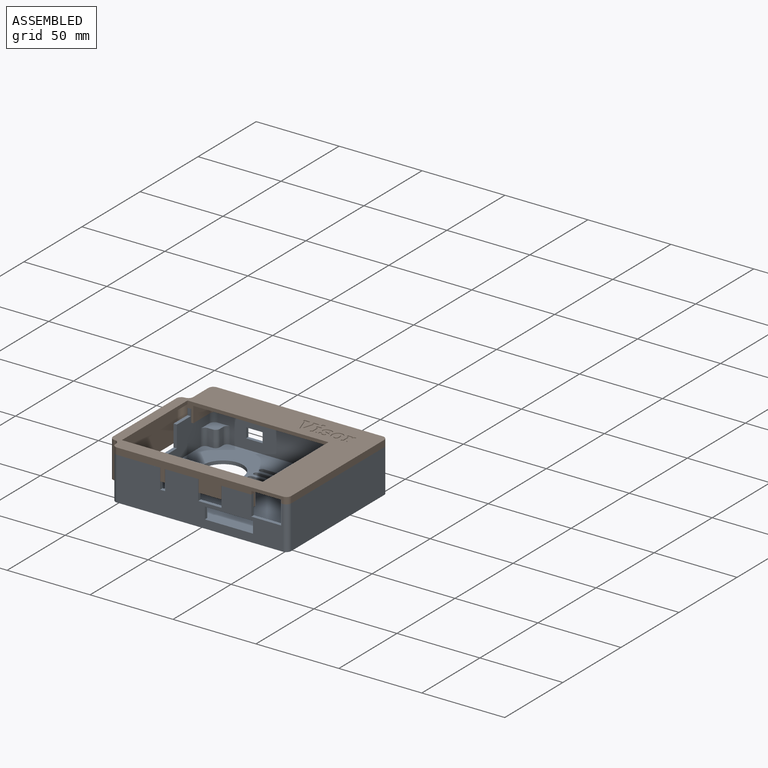
[diagram: assembled view]
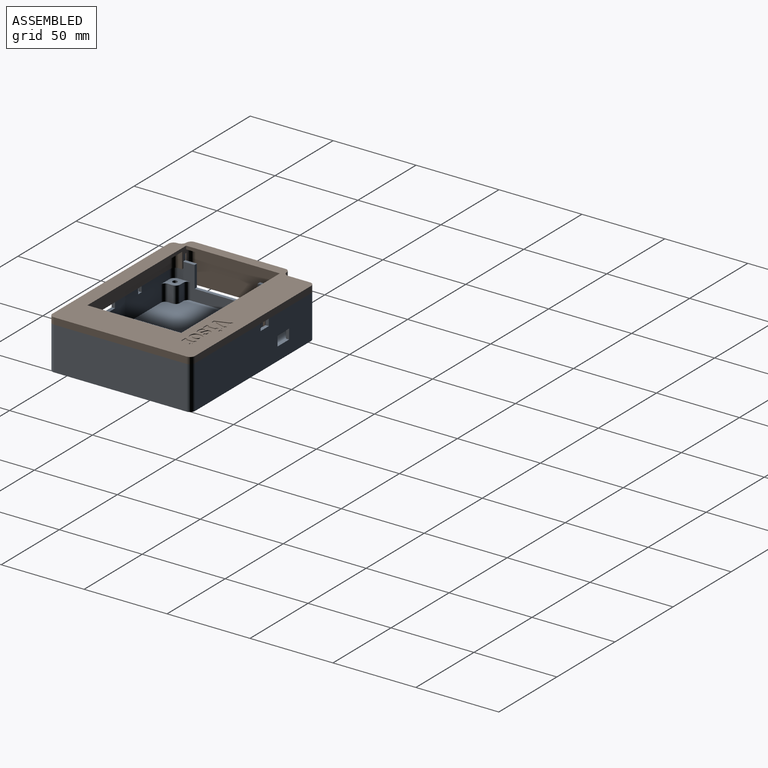
[diagram: assembled view, second angle]
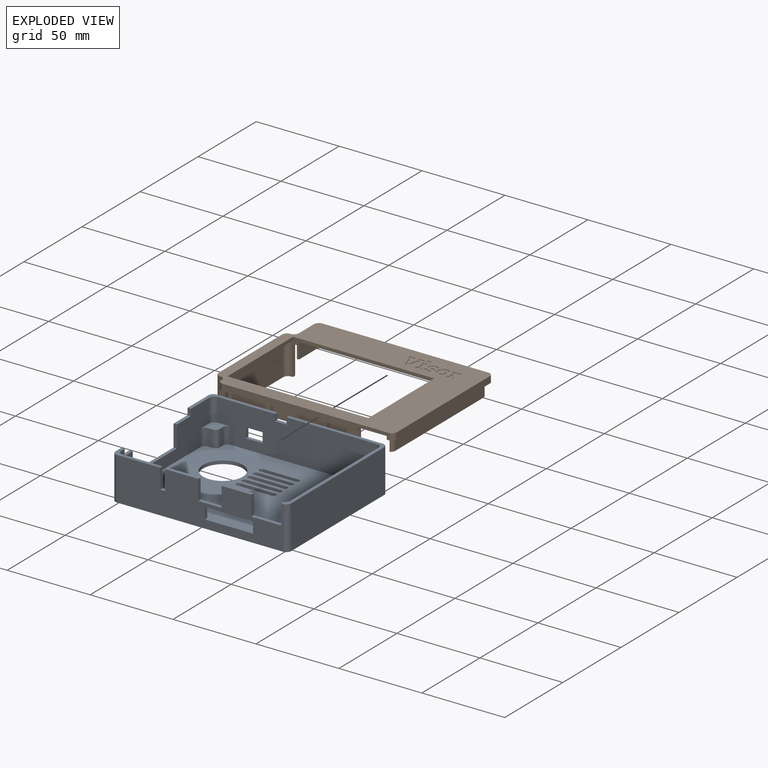
[diagram: exploded view]
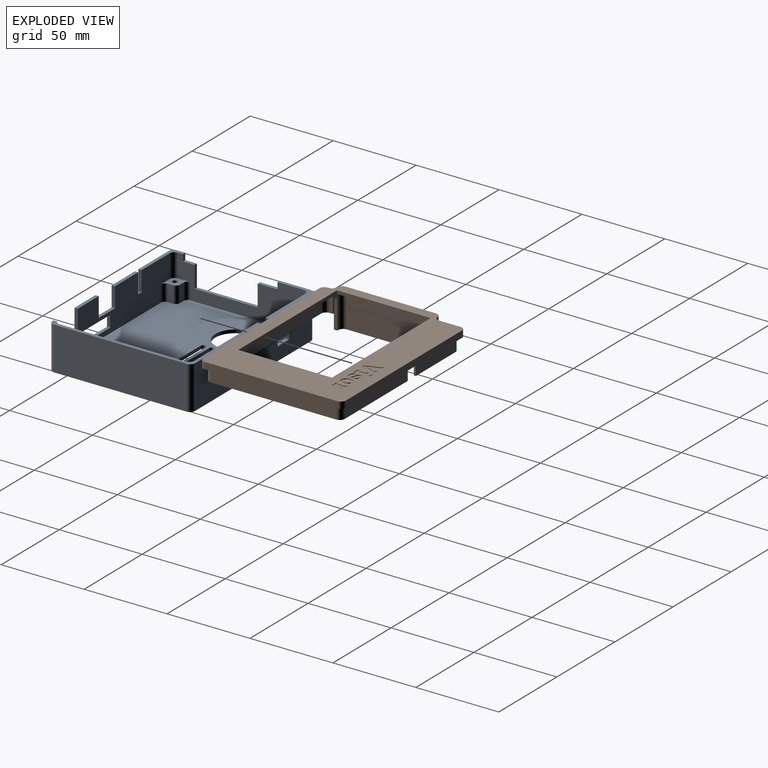
[diagram: exploded view, second angle]
ASSEMBLY  parts=2 mates=3
PART A: 98 faces, bbox 106x86x26 mm
  f0: plane 96x24mm, normal (0,-1,0), area 2066mm2, adj f3,f4,f12,f21,f24,f43,f44,f45
  f1: plane 100x26mm, normal (0,1,0), area 2512mm2, adj f3,f4,f14,f43,f44,f45,f49,f50
  f2: plane 12x2mm, normal (0,0,1), area 24mm2, adj f5,f6,f40,f47
  f3: plane 39.5x21mm, normal (0,0,1), area 117mm2, adj f0,f1,f5,f6,f40,f43,f90,f94
  f4: plane 86x59.5mm, normal (0,0,1), area 290.9mm2, adj f0,f1,f9,f13,f15,f33,f44,f92
  f5: plane 76x24mm, normal (1,0,0), area 952mm2, adj f2,f3,f7,f12,f18,f24,f40,f41
  f6: plane 80x26mm, normal (-1,0,0), area 1358mm2, adj f2,f3,f7,f14,f40,f41,f42,f46
  f7: plane 29x8mm, normal (0,0,1), area 70mm2, adj f5,f6,f8,f9,f39,f41,f91,f97
  f8: plane 96x24mm, normal (0,1,0), area 1573mm2, adj f7,f10,f11,f12,f18,f26,f27,f28
  f9: plane 100x26mm, normal (0,-1,0), area 1977mm2, adj f4,f7,f10,f11,f14,f27,f28,f29
  f10: plane 20x2mm, normal (0,0,1), area 40mm2, adj f8,f9,f35,f38
  f11: plane 18x2mm, normal (0,0,1), area 36mm2, adj f8,f9,f32,f36
  f12: plane 102x82mm, normal (0,0,1), area 7333.9mm2, adj f0,f5,f8,f13,f16,f17,f19,f20
  f13: plane 76x24mm, normal (-1,0,0), area 1694mm2, adj f4,f12,f21,f26,f79,f85,f95,f96
  f14: plane 106x86mm, normal (0,0,-1), area 8305.5mm2, adj f1,f6,f9,f15,f53,f54,f55,f56
  f15: plane 80x26mm, normal (1,0,0), area 2080mm2, adj f4,f14,f92,f93
  f16: plane 10x3mm, normal (0,1,0), area 30mm2, adj f12,f18,f88,f89
  f17: plane 10x3mm, normal (1,0,0), area 30mm2, adj f12,f18,f87,f89
  f18: plane 10.5x10.5mm, normal (0,0,1), area 56.3mm2, adj f5,f8,f16,f17,f77,f87,f88,f89
  f19: plane 10x3mm, normal (0,-1,0), area 30mm2, adj f12,f21,f85,f86
  f20: plane 10x3mm, normal (-1,0,0), area 30mm2, adj f12,f21,f84,f86
  f21: plane 10.5x10.5mm, normal (0,0,1), area 56.3mm2, adj f0,f13,f19,f20,f75,f84,f85,f86
  f22: plane 10x3mm, normal (1,0,0), area 30mm2, adj f12,f24,f82,f83
  f23: plane 10x3mm, normal (0,-1,0), area 30mm2, adj f12,f24,f81,f83
  f24: plane 10.5x10.5mm, normal (0,0,1), area 63.4mm2, adj f0,f5,f22,f23,f81,f82,f83,f94
  f25: plane 10x1mm, normal (-1,0,0), area 10mm2, adj f12,f26,f78,f80
  f26: plane 8.5x7.5mm, normal (0,0,1), area 29.4mm2, adj f8,f13,f25,f78,f79,f80,f96
  f27: plane 7x2mm, normal (-1,0,0), area 14mm2, adj f8,f9,f29,f30
  f28: plane 7x2mm, normal (1,0,0), area 14mm2, adj f8,f9,f29,f30
  f29: plane 29x2mm, normal (0,0,1), area 58mm2, adj f8,f9,f27,f28
  f30: plane 29x2mm, normal (0,0,-1), area 58mm2, adj f8,f9,f27,f28
  f31: plane 18x2.17mm, normal (0,0,1), area 36.1mm2, adj f8,f9,f32,f33,f96
  f32: plane 12x2mm, normal (1,0,0), area 24mm2, adj f8,f9,f11,f31
  f33: plane 12x2.17mm, normal (-1,0,0), area 26.1mm2, adj f4,f9,f31,f96
  f34: plane 14x2mm, normal (0,0,1), area 28mm2, adj f8,f9,f35,f36
  f35: plane 12x2mm, normal (1,0,0), area 24mm2, adj f8,f9,f10,f34
  f36: plane 12x2mm, normal (-1,0,0), area 24mm2, adj f8,f9,f11,f34
  f37: plane 3x2mm, normal (0,0,1), area 6mm2, adj f8,f9,f38,f39
  f38: plane 12x2mm, normal (-1,0,0), area 24mm2, adj f8,f9,f10,f37
  f39: plane 12x2mm, normal (1,0,0), area 24mm2, adj f7,f8,f9,f37
  f40: plane 4x2mm, normal (0,-1,0), area 8mm2, adj f2,f3,f5,f6
  f41: plane 4x2mm, normal (0,1,0), area 8mm2, adj f5,f6,f7,f42
  f42: plane 7x2mm, normal (0,0,1), area 14mm2, adj f5,f6,f41,f46
  f43: plane 4x2mm, normal (1,0,0), area 8mm2, adj f0,f1,f3,f45
  f44: plane 4x2mm, normal (-1,0,0), area 8mm2, adj f0,f1,f4,f45
  f45: plane 7x2mm, normal (0,0,1), area 14mm2, adj f0,f1,f43,f44
  f46: plane 13x2mm, normal (0,1,0), area 26mm2, adj f5,f6,f42,f48
  f47: plane 13x2mm, normal (0,-1,0), area 26mm2, adj f2,f5,f6,f48
  f48: plane 38x2mm, normal (0,0,1), area 76mm2, adj f5,f6,f46,f47
  f49: plane 6x2mm, normal (1,0,0), area 12mm2, adj f0,f1,f51,f52
  f50: plane 6x2mm, normal (-1,0,0), area 12mm2, adj f0,f1,f51,f52
  f51: plane 10x2mm, normal (0,0,1), area 20mm2, adj f0,f1,f49,f50
  f52: plane 10x2mm, normal (0,0,-1), area 20mm2, adj f0,f1,f49,f50
  f53: cylinder r=12mm len=24mm, axis (0,0,1), area 150.8mm2, adj f12,f14
  f54: plane 21x2mm, normal (0,-1,0), area 42mm2, adj f12,f14,f64,f65
  f55: plane 21x2mm, normal (0,1,0), area 42mm2, adj f12,f14,f64,f65
  f56: plane 21x2mm, normal (0,-1,0), area 42mm2, adj f12,f14,f66,f67
  f57: plane 21x2mm, normal (0,1,0), area 42mm2, adj f12,f14,f66,f67
  f58: plane 21x2mm, normal (0,-1,0), area 42mm2, adj f12,f14,f68,f69
  f59: plane 21x2mm, normal (0,1,0), area 42mm2, adj f12,f14,f68,f69
  f60: plane 21x2mm, normal (0,-1,0), area 42mm2, adj f12,f14,f70,f71
  f61: plane 21x2mm, normal (0,1,0), area 42mm2, adj f12,f14,f70,f71
  f62: plane 21x2mm, normal (0,-1,0), area 42mm2, adj f12,f14,f72,f73
  f63: plane 21x2mm, normal (0,1,0), area 42mm2, adj f12,f14,f72,f73
  f64: cylinder r=1.5mm len=3mm, axis (0,0,-1), area 9.4mm2, adj f12,f14,f54,f55
  f65: cylinder r=1.5mm len=3mm, axis (0,0,1), area 9.4mm2, adj f12,f14,f54,f55
  f66: cylinder r=1.5mm len=3mm, axis (0,0,-1), area 9.4mm2, adj f12,f14,f56,f57
  f67: cylinder r=1.5mm len=3mm, axis (0,0,1), area 9.4mm2, adj f12,f14,f56,f57
  f68: cylinder r=1.5mm len=3mm, axis (0,0,-1), area 9.4mm2, adj f12,f14,f58,f59
  f69: cylinder r=1.5mm len=3mm, axis (0,0,1), area 9.4mm2, adj f12,f14,f58,f59
  f70: cylinder r=1.5mm len=3mm, axis (0,0,-1), area 9.4mm2, adj f12,f14,f60,f61
  f71: cylinder r=1.5mm len=3mm, axis (0,0,1), area 9.4mm2, adj f12,f14,f60,f61
  f72: cylinder r=1.5mm len=3mm, axis (0,0,-1), area 9.4mm2, adj f12,f14,f62,f63
  f73: cylinder r=1.5mm len=3mm, axis (0,0,1), area 9.4mm2, adj f12,f14,f62,f63
  f74: plane 3x3mm, normal (0,0,1), area 7.1mm2, adj f75
  f75: cylinder r=1.5mm len=10mm, axis (0,0,1), area 94.2mm2, adj f21,f74
  f76: plane 3x3mm, normal (0,0,1), area 7.1mm2, adj f77
  f77: cylinder r=1.5mm len=10mm, axis (0,0,1), area 94.2mm2, adj f18,f76
  f78: cylinder r=2.5mm len=10mm, axis (0,0,-1), area 39.3mm2, adj f12,f25,f26,f79
  f79: cylinder r=2.5mm len=10mm, axis (0,0,1), area 39.3mm2, adj f12,f13,f26,f78
  f80: cylinder r=2.5mm len=10mm, axis (0,0,1), area 39.3mm2, adj f8,f12,f25,f26
  f81: cylinder r=2.5mm len=10mm, axis (0,0,-1), area 39.3mm2, adj f5,f12,f23,f24
  f82: cylinder r=2.5mm len=10mm, axis (0,0,-1), area 39.3mm2, adj f0,f12,f22,f24
  f83: cylinder r=2.5mm len=10mm, axis (0,0,-1), area 39.3mm2, adj f12,f22,f23,f24
  f84: cylinder r=2.5mm len=10mm, axis (0,0,1), area 39.3mm2, adj f0,f12,f20,f21
  f85: cylinder r=2.5mm len=10mm, axis (0,0,-1), area 39.3mm2, adj f12,f13,f19,f21
  f86: cylinder r=2.5mm len=10mm, axis (0,0,-1), area 39.3mm2, adj f12,f19,f20,f21
  f87: cylinder r=2.5mm len=10mm, axis (0,0,-1), area 39.3mm2, adj f8,f12,f17,f18
  f88: cylinder r=2.5mm len=10mm, axis (0,0,1), area 39.3mm2, adj f5,f12,f16,f18
  f89: cylinder r=2.5mm len=10mm, axis (0,0,-1), area 39.3mm2, adj f12,f16,f17,f18
  f90: cylinder r=3mm len=26mm, axis (0,0,1), area 122.5mm2, adj f1,f3,f6,f14
  f91: cylinder r=3mm len=26mm, axis (0,0,-1), area 122.5mm2, adj f6,f7,f9,f14
  f92: cylinder r=3mm len=26mm, axis (0,0,1), area 122.5mm2, adj f4,f9,f14,f15
  f93: cylinder r=3mm len=26mm, axis (0,0,-1), area 122.5mm2, adj f1,f4,f14,f15
  f94: cylinder r=3mm len=14mm, axis (0,0,-1), area 66mm2, adj f0,f3,f5,f24
  f95: cylinder r=3mm len=14mm, axis (0,0,1), area 66mm2, adj f0,f4,f13,f21
  f96: cylinder r=3mm len=14mm, axis (0,0,-1), area 53.7mm2, adj f4,f8,f13,f26,f31,f33
  f97: cylinder r=3mm len=14mm, axis (0,0,1), area 66mm2, adj f5,f7,f8,f18
PART B: 175 faces, bbox 112x86x22 mm
  f0: plane 86x22mm, normal (0,-1,0), area 202.4mm2, adj f3,f13,f15,f22,f23,f26,f31,f147
  f1: plane 86x22mm, normal (0,1,0), area 202.4mm2, adj f11,f12,f22,f26,f27,f31,f142,f147
  f2: plane 100x11.5mm, normal (0,1,0), area 485.5mm2, adj f3,f20,f21,f22,f23,f24,f25,f26
  f3: plane 81.7x8.5mm, normal (0,0,1), area 141.4mm2, adj f0,f2,f5,f6,f7,f8,f13,f15
  f4: plane 4x0.5mm, normal (-1,0,0), area 2mm2, adj f22,f23,f166,f168
  f5: plane 23.9x7.5mm, normal (0,1,0), area 179.2mm2, adj f3,f23,f150,f158
  f6: plane 20.4x7.5mm, normal (0,1,0), area 153mm2, adj f3,f24,f151,f152
  f7: plane 18x7.5mm, normal (0,1,0), area 135mm2, adj f3,f21,f25,f32
  f8: plane 77.5x9.5mm, normal (0,-1,0), area 736.2mm2, adj f3,f21,f26,f155
  f9: plane 7.5x1.2mm, normal (1,0,0), area 9mm2, adj f14,f17,f27,f142
  f10: plane 54.2x7.5mm, normal (0,-1,0), area 406.5mm2, adj f19,f27,f141,f160
  f11: plane 15.7x7.5mm, normal (-1,0,0), area 117.7mm2, adj f1,f27,f142,f159
  f12: plane 14.5x9.5mm, normal (1,0,0), area 137.7mm2, adj f1,f26,f142,f157
  f13: plane 7.5x3.2mm, normal (-1,0,0), area 24mm2, adj f0,f3,f23,f158
  f14: plane 34.2x7.5mm, normal (0,-1,0), area 256.5mm2, adj f9,f27,f142,f159
  f15: plane 9.5x2mm, normal (1,0,0), area 19mm2, adj f0,f3,f26,f155
  f16: plane 74.34x9.5mm, normal (-1,0,0), area 706.2mm2, adj f26,f141,f156,f174
  f17: plane 93x9.5mm, normal (0,1,0), area 831mm2, adj f9,f19,f26,f27,f141,f142,f156,f157
  f18: plane 75.7x7.5mm, normal (1,0,0), area 567.7mm2, adj f27,f141,f160,f173
  f19: plane 7.5x1.2mm, normal (-1,0,0), area 9mm2, adj f10,f17,f27,f141
  f20: plane 9.5x3.5mm, normal (-1,0,0), area 16mm2, adj f2,f26,f27,f141,f173,f174
  f21: plane 9.5x3.5mm, normal (1,0,0), area 16mm2, adj f2,f3,f7,f8,f25,f26
  f22: plane 112x86mm, normal (0,0,-1), area 4530.6mm2, adj f0,f1,f2,f4,f28,f29,f30,f31
  f23: plane 32.2x8.5mm, normal (0,0,1), area 83.8mm2, adj f0,f2,f4,f5,f13,f144,f150,f158
  f24: plane 20.4x2.3mm, normal (0,0,1), area 46.9mm2, adj f2,f6,f151,f152
  f25: plane 18.2x2.3mm, normal (0,0,1), area 41.8mm2, adj f2,f7,f21,f32,f148,f149
  f26: plane 99x82.5mm, normal (0,0,1), area 3273.2mm2, adj f0,f1,f2,f8,f12,f15,f16,f17
  f27: plane 109x86mm, normal (0,0,1), area 493.3mm2, adj f1,f2,f9,f10,f11,f14,f17,f18
  f28: plane 80x4mm, normal (1,0,0), area 320mm2, adj f22,f27,f162,f163
  f29: plane 100x4mm, normal (0,-1,0), area 400mm2, adj f22,f27,f161,f162
  f30: plane 13x4mm, normal (-1,0,0), area 52mm2, adj f22,f27,f161,f167
  f31: plane 56.5x2mm, normal (-1,0,0), area 113mm2, adj f0,f1,f22,f26
  f32: plane 7.5x0.3mm, normal (1,0,0), area 2.3mm2, adj f3,f7,f25,f148
  f33: plane 0.9x0.4mm, normal (0.21,0.98,0), area 0.4mm2, adj f22,f34,f42,f43
  f34: plane 1.12x0.4mm, normal (1,0,0), area 0.4mm2, adj f22,f33,f35,f43
  f35: plane 3.68x0.4mm, normal (0,-1,0), area 1.5mm2, adj f22,f34,f36,f43
  f36: plane 1.12x0.4mm, normal (-1,0,0), area 0.4mm2, adj f22,f35,f37,f43
  f37: plane 0.9x0.4mm, normal (-0.21,0.98,0), area 0.4mm2, adj f22,f36,f38,f43
  f38: plane 5.63x0.4mm, normal (-1,0,0), area 2.3mm2, adj f22,f37,f39,f43
  f39: plane 2.88x0.4mm, normal (0,1,0), area 1.2mm2, adj f22,f38,f40,f43
  f40: plane 1.13x0.4mm, normal (1,0,0), area 0.5mm2, adj f22,f39,f41,f43
  f41: plane 1x0.4mm, normal (0.19,-0.98,0), area 0.4mm2, adj f22,f40,f42,f43
  f42: plane 4.31x0.4mm, normal (1,0,0), area 1.7mm2, adj f22,f33,f41,f43
  f43: plane 6.94x3.77mm, normal (0,0,-1), area 16.4mm2, adj f33,f34,f35,f36,f37,f38,f39,f40
  f44: plane 1.88x0.4mm, normal (0,-1,0), area 0.7mm2, adj f22,f45,f47,f48
  f45: plane 1.4x0.4mm, normal (-1,0,0), area 0.6mm2, adj f22,f44,f46,f48
  f46: plane 1.88x0.4mm, normal (0,1,0), area 0.7mm2, adj f22,f45,f47,f48
  f47: plane 1.4x0.4mm, normal (1,0,0), area 0.6mm2, adj f22,f44,f46,f48
  f48: plane 1.88x1.4mm, normal (0,0,-1), area 2.6mm2, adj f44,f45,f46,f47
  f49: plane 1.26x0.4mm, normal (0,-1,0), area 0.5mm2, adj f22,f50,f78,f79
  f50: plane 1.73x0.4mm, normal (-1,0.01,0), area 0.7mm2, adj f22,f49,f51,f79
  f51: extruded ~1.13x0.56mm, area 0.5mm2, adj f22,f50,f52,f79
  f52: extruded ~1.53x0.4mm, area 0.6mm2, adj f22,f51,f53,f79
  f53: extruded ~2.05x0.63mm, area 0.9mm2, adj f22,f52,f54,f79
  f54: extruded ~1.51x0.72mm, area 0.7mm2, adj f22,f53,f55,f79
  f55: extruded ~1.34x0.63mm, area 0.6mm2, adj f22,f54,f56,f79
  f56: extruded ~1.85x0.74mm, area 0.8mm2, adj f22,f55,f57,f79
  f57: extruded ~1.11x0.4mm, area 0.5mm2, adj f22,f56,f58,f79
  f58: extruded ~0.53x0.4mm, area 0.3mm2, adj f22,f57,f59,f79
  f59: extruded ~0.56x0.4mm, area 0.3mm2, adj f22,f58,f60,f79
  f60: extruded ~0.87x0.4mm, area 0.4mm2, adj f22,f59,f61,f79
  f61: extruded ~0.6x0.4mm, area 0.2mm2, adj f22,f60,f62,f79
  f62: extruded ~0.46x0.4mm, area 0.2mm2, adj f22,f61,f63,f79
  f63: plane 0.9x0.4mm, normal (-0.96,0.27,0), area 0.4mm2, adj f22,f62,f64,f79
  f64: plane 1.31x0.4mm, normal (0,1,0), area 0.5mm2, adj f22,f63,f65,f79
  f65: plane 1.56x0.4mm, normal (1,-0.01,0), area 0.6mm2, adj f22,f64,f66,f79
  f66: extruded ~1.19x0.67mm, area 0.6mm2, adj f22,f65,f67,f79
  f67: extruded ~1.47x0.4mm, area 0.6mm2, adj f22,f66,f68,f79
  f68: extruded ~2.12x0.59mm, area 0.9mm2, adj f22,f67,f69,f79
  f69: extruded ~1.53x0.81mm, area 0.7mm2, adj f22,f68,f70,f79
  f70: extruded ~1.37x0.62mm, area 0.6mm2, adj f22,f69,f71,f79
  f71: extruded ~1.91x0.75mm, area 0.8mm2, adj f22,f70,f72,f79
  f72: extruded ~1.1x0.4mm, area 0.5mm2, adj f22,f71,f73,f79
  f73: extruded ~0.52x0.4mm, area 0.2mm2, adj f22,f72,f74,f79
  f74: extruded ~0.55x0.4mm, area 0.3mm2, adj f22,f73,f75,f79
  f75: extruded ~0.78x0.4mm, area 0.3mm2, adj f22,f74,f76,f79
  f76: extruded ~0.65x0.4mm, area 0.3mm2, adj f22,f75,f77,f79
  f77: extruded ~0.48x0.4mm, area 0.2mm2, adj f22,f76,f78,f79
  f78: plane 0.87x0.4mm, normal (0.97,-0.22,0), area 0.4mm2, adj f22,f49,f77,f79
  f79: plane 7.2x5.71mm, normal (0,0,-1), area 25.8mm2, adj f49,f50,f51,f52,f53,f54,f55,f56
  f80: plane 0.9x0.4mm, normal (0.21,0.98,0), area 0.4mm2, adj f22,f81,f98,f99
  f81: plane 1.12x0.4mm, normal (1,0,0), area 0.4mm2, adj f22,f80,f82,f99
  f82: plane 3.67x0.4mm, normal (0,-1,0), area 1.5mm2, adj f22,f81,f83,f99
  f83: plane 1.12x0.4mm, normal (-1,0,0), area 0.4mm2, adj f22,f82,f84,f99
  f84: plane 0.9x0.4mm, normal (-0.21,0.98,0), area 0.4mm2, adj f22,f83,f85,f99
  f85: plane 3.37x0.4mm, normal (-1,0,0), area 1.3mm2, adj f22,f84,f86,f99
  f86: extruded ~0.46x0.41mm, area 0.2mm2, adj f22,f85,f87,f99
  f87: extruded ~0.68x0.4mm, area 0.3mm2, adj f22,f86,f88,f99
  f88: plane 0.77x0.4mm, normal (0.02,-1,0), area 0.3mm2, adj f22,f87,f89,f99
  f89: plane 1.71x0.4mm, normal (-0.99,-0.12,0), area 0.7mm2, adj f22,f88,f90,f99
  f90: extruded ~0.4x0.27mm, area 0.1mm2, adj f22,f89,f91,f99
  f91: extruded ~0.4x0.31mm, area 0.1mm2, adj f22,f90,f92,f99
  f92: extruded ~0.89x0.4mm, area 0.4mm2, adj f22,f91,f93,f99
  f93: extruded ~0.84x0.63mm, area 0.4mm2, adj f22,f92,f94,f99
  f94: plane 1.01x0.4mm, normal (-1,0.08,0), area 0.4mm2, adj f22,f93,f95,f99
  f95: plane 2.74x0.4mm, normal (0,1,0), area 1.1mm2, adj f22,f94,f96,f99
  f96: plane 1.13x0.4mm, normal (1,0,0), area 0.5mm2, adj f22,f95,f97,f99
  f97: plane 0.99x0.4mm, normal (0.19,-0.98,0), area 0.4mm2, adj f22,f96,f98,f99
  f98: plane 4.31x0.4mm, normal (1,0,0), area 1.7mm2, adj f22,f80,f97,f99
  f99: plane 7.07x4.93mm, normal (0,0,-1), area 19.5mm2, adj f80,f81,f82,f83,f84,f85,f86,f87
  f100: extruded ~1.52x0.4mm, area 0.6mm2, adj f101,f119,f120,f140
  f101: plane 0.4x0.14mm, normal (-1,0,0), area 0.1mm2, adj f100,f102,f120,f140
  f102: extruded ~1.51x0.4mm, area 0.6mm2, adj f101,f103,f120,f140
  f103: extruded ~1.07x0.58mm, area 0.5mm2, adj f102,f104,f120,f140
  f104: extruded ~1.07x0.58mm, area 0.5mm2, adj f103,f105,f120,f140
  f105: extruded ~1.51x0.4mm, area 0.6mm2, adj f104,f106,f120,f140
  f106: plane 0.4x0.14mm, normal (1,0,0), area 0.1mm2, adj f105,f107,f120,f140
  f107: extruded ~1.52x0.4mm, area 0.6mm2, adj f106,f108,f120,f140
  f108: extruded ~1.06x0.58mm, area 0.5mm2, adj f107,f119,f120,f140
  f109: extruded ~2.54x0.87mm, area 1.1mm2, adj f22,f110,f118,f120
  f110: plane 0.4x0.14mm, normal (1,0,0), area 0.1mm2, adj f22,f109,f111,f120
  f111: extruded ~2.55x0.87mm, area 1.1mm2, adj f22,f110,f112,f120
  f112: extruded ~2.42x0.99mm, area 1.1mm2, adj f22,f111,f113,f120
  f113: extruded ~2.4x0.99mm, area 1.1mm2, adj f22,f112,f114,f120
  f114: extruded ~2.55x0.87mm, area 1.1mm2, adj f22,f113,f115,f120
  f115: plane 0.4x0.14mm, normal (-1,0,0), area 0.1mm2, adj f22,f114,f116,f120
  f116: extruded ~2.55x0.87mm, area 1.1mm2, adj f22,f115,f117,f120
  f117: extruded ~2.41x0.99mm, area 1.1mm2, adj f22,f116,f118,f120
  f118: extruded ~2.4x0.99mm, area 1.1mm2, adj f22,f109,f117,f120
  f119: extruded ~1.08x0.58mm, area 0.5mm2, adj f100,f108,f120,f140
  f120: plane 7.21x6.55mm, normal (0,0,-1), area 28.3mm2, adj f100,f101,f102,f103,f104,f105,f106,f107
  f121: plane 0.71x0.4mm, normal (-0.18,-0.98,0), area 0.3mm2, adj f22,f122,f138,f139
  f122: plane 1.13x0.4mm, normal (-1,0,0), area 0.5mm2, adj f22,f121,f123,f139
  f123: plane 3.42x0.4mm, normal (0,1,0), area 1.4mm2, adj f22,f122,f124,f139
  f124: plane 1.13x0.4mm, normal (1,0,0), area 0.5mm2, adj f22,f123,f125,f139
  f125: plane 0.77x0.4mm, normal (0.13,-0.99,0), area 0.3mm2, adj f22,f124,f126,f139
  f126: plane 8.11x2.76mm, normal (0.95,-0.32,0), area 3.4mm2, adj f22,f125,f127,f139
  f127: plane 1.93x0.4mm, normal (0,-1,0), area 0.8mm2, adj f22,f126,f128,f139
  f128: plane 8.11x2.75mm, normal (-0.95,-0.32,0), area 3.4mm2, adj f22,f127,f129,f139
  f129: plane 0.78x0.4mm, normal (-0.13,-0.99,0), area 0.3mm2, adj f22,f128,f130,f139
  f130: plane 1.13x0.4mm, normal (-1,0,0), area 0.5mm2, adj f22,f129,f131,f139
  f131: plane 3.41x0.4mm, normal (0,1,0), area 1.4mm2, adj f22,f130,f132,f139
  f132: plane 1.13x0.4mm, normal (1,0,0), area 0.5mm2, adj f22,f131,f133,f139
  f133: plane 0.71x0.4mm, normal (0.18,-0.98,0), area 0.3mm2, adj f22,f132,f134,f139
  f134: plane 5.62x1.66mm, normal (0.96,0.28,0), area 2.3mm2, adj f22,f133,f135,f139
  f135: plane 0.5x0.4mm, normal (0.98,0.21,0), area 0.2mm2, adj f22,f134,f136,f139
  f136: plane 0.4x0.04mm, normal (0,1,0), area 0mm2, adj f22,f135,f137,f139
  f137: plane 0.51x0.4mm, normal (-0.98,0.22,0), area 0.2mm2, adj f22,f136,f138,f139
  f138: plane 5.6x1.66mm, normal (-0.96,0.28,0), area 2.3mm2, adj f22,f121,f137,f139
  f139: plane 9.34x8.99mm, normal (0,0,-1), area 35.3mm2, adj f121,f122,f123,f124,f125,f126,f127,f128
  f140: plane 4.33x2.81mm, normal (0,0,-1), area 10.1mm2, adj f100,f101,f102,f103,f104,f105,f106,f107
  f141: plane 81.4x57.2mm, normal (0,0,1), area 164.4mm2, adj f10,f16,f17,f18,f19,f20,f156,f160
  f142: plane 37.2x18.7mm, normal (0,0,1), area 65.6mm2, adj f1,f9,f11,f12,f14,f17,f157,f159
  f143: plane 50.5x20mm, normal (1,0,0), area 1010mm2, adj f147,f153,f154,f171
  f144: plane 18x2.8mm, normal (0,1,0), area 50.4mm2, adj f23,f147,f164,f170
  f145: plane 54.5x22mm, normal (-1,0,0), area 1199mm2, adj f22,f147,f164,f165
  f146: plane 18x2.8mm, normal (0,-1,0), area 50.4mm2, adj f27,f147,f165,f169
  f147: plane 60.5x5.8mm, normal (0,0,1), area 136.2mm2, adj f0,f1,f143,f144,f145,f146,f153,f154
  f148: plane 7.5x0.2mm, normal (0,1,0), area 1.5mm2, adj f3,f25,f32,f149
  f149: plane 7.5x2mm, normal (1,0,0), area 15mm2, adj f2,f3,f25,f148
  f150: plane 7.5x2.3mm, normal (-1,0,0), area 17.2mm2, adj f2,f3,f5,f23
  f151: plane 7.5x2.3mm, normal (1,0,0), area 17.2mm2, adj f2,f3,f6,f24
  f152: plane 7.5x2.3mm, normal (-1,0,0), area 17.2mm2, adj f2,f3,f6,f24
  f153: cylinder r=3mm len=20mm, axis (0,0,-1), area 94.2mm2, adj f1,f143,f147,f171
  f154: cylinder r=3mm len=20mm, axis (0,0,1), area 94.2mm2, adj f0,f143,f147,f171
  f155: cylinder r=3mm len=9.5mm, axis (0,0,-1), area 44.8mm2, adj f3,f8,f15,f26
  f156: cylinder r=3mm len=9.5mm, axis (0,0,-1), area 44.8mm2, adj f16,f17,f26,f141
  f157: cylinder r=3mm len=9.5mm, axis (0,0,1), area 44.8mm2, adj f12,f17,f26,f142
  f158: cylinder r=3mm len=7.5mm, axis (0,0,1), area 35.3mm2, adj f3,f5,f13,f23
  f159: cylinder r=3mm len=7.5mm, axis (0,0,-1), area 35.3mm2, adj f11,f14,f27,f142
  f160: cylinder r=3mm len=7.5mm, axis (0,0,1), area 35.3mm2, adj f10,f18,f27,f141
  f161: cylinder r=3mm len=4mm, axis (0,0,-1), area 18.8mm2, adj f22,f27,f29,f30
  f162: cylinder r=3mm len=4mm, axis (0,0,1), area 18.8mm2, adj f22,f27,f28,f29
  f163: cylinder r=3mm len=4mm, axis (0,0,-1), area 18.8mm2, adj f2,f22,f27,f28
  f164: cylinder r=3mm len=22mm, axis (0,0,-1), area 103.7mm2, adj f22,f144,f145,f147,f166
  f165: cylinder r=3mm len=22mm, axis (0,0,-1), area 103.7mm2, adj f22,f145,f146,f147,f167
  f166: cylinder r=3mm len=4mm, axis (0,0,1), area 18.8mm2, adj f4,f22,f23,f164
  f167: cylinder r=3mm len=4mm, axis (0,0,1), area 18.8mm2, adj f22,f27,f30,f165
  f168: cylinder r=3mm len=4mm, axis (0,0,1), area 18.8mm2, adj f2,f4,f22,f23
  f169: plane 18x2mm, normal (1,0,0), area 36mm2, adj f1,f27,f146,f147
  f170: plane 18x2mm, normal (1,0,0), area 36mm2, adj f0,f23,f144,f147
  f171: plane 56.5x4mm, normal (0,0,1), area 222.1mm2, adj f0,f1,f143,f153,f154,f172
  f172: plane 56.5x2mm, normal (1,0,0), area 113mm2, adj f0,f1,f22,f171
  f173: cylinder r=3mm len=7.5mm, axis (0,0,-1), area 25.3mm2, adj f18,f20,f27,f141
  f174: cylinder r=3mm len=9.5mm, axis (0,0,-1), area 16.7mm2, adj f16,f20,f26,f141
PLACE A t=(51.74,-64.93,123.98)mm
PLACE B rot(axis=(-1,0,0),180deg) t=(51.74,-64.93,153.98)mm
MATE planar B.f29 <-> A.f1  axis (0,1,0) through (51.74,-21.93,151.98)mm
MATE planar B.f28 <-> A.f15  axis (1,0,0) through (104.74,-64.93,149.98)mm
MATE planar A.f3 <-> B.f25  axis (0,0,1) through (12.43,-26.37,149.98)mm
